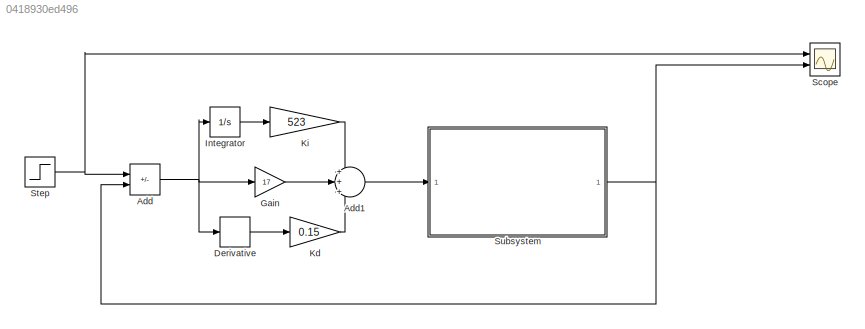
MODEL slx_0418930ed496
KIND model
CONFIG AbsTol = auto
CONFIG EnableMultiTasking = off
CONFIG FixedStep = auto
CONFIG MaxStep = auto
CONFIG MinStep = auto
CONFIG RelTol = 1e-3
CONFIG SampleTimeConstraint = Unconstrained
CONFIG Solver = VariableStepAuto
CONFIG SolverName = VariableStepAuto
CONFIG StartTime = 0.0
CONFIG StopTime = 100
BLOCK [Sum] Add
  IconShape = rectangular
  Inputs = +-
  Ports = [2, 1]
BLOCK [Sum] Add1
  Inputs = +++
  Ports = [3, 1]
BLOCK [Derivative] Derivative
BLOCK [Gain] Gain
  Gain = 17
BLOCK [Integrator] Integrator
  Ports = [1, 1]
BLOCK [Gain] Kd
  Gain = 0.15
BLOCK [Gain] Ki
  Gain = 523
BLOCK [Scope] Scope
  Floating = off
  NumInputPorts = 2
  Ports = [2]
  ScopeSpecificationString = Simulink.scopes.TimeScopeBlockCfg('CurrentConfiguration', extmgr.ConfigurationSet(extmgr.Configuration('Core','General UI',true),extmgr.Configuration('Core','Source UI',true),extmgr.Configuration('Sources','WiredSimulink',true),extmgr.Configuration('Visuals','Time Domain',true,'SerializedDisplays',{struct('MinYLimReal','-1762852336616.07446','MaxYLimReal','2324125107846.26953','YLabelReal','','Min...<+1801ch>
BLOCK [Step] Step
  SampleTime = 0
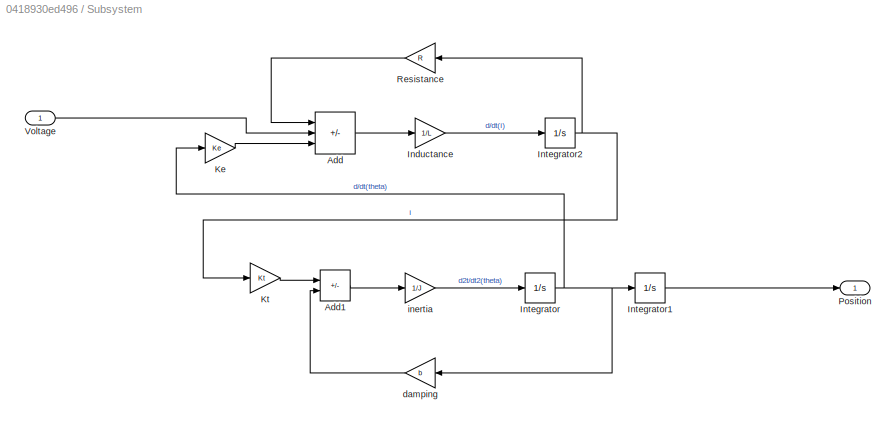
BLOCK [SubSystem] Subsystem
  Ports = [1, 1]
  RequestExecContextInheritance = off
BLOCK [Sum] Subsystem/Add
  IconShape = rectangular
  Inputs = -+-
  Ports = [3, 1]
BLOCK [Sum] Subsystem/Add1
  IconShape = rectangular
  Inputs = +-
  Ports = [2, 1]
BLOCK [Gain] Subsystem/Inductance
  Gain = 1/L
BLOCK [Integrator] Subsystem/Integrator
  Ports = [1, 1]
BLOCK [Integrator] Subsystem/Integrator1
  Ports = [1, 1]
BLOCK [Integrator] Subsystem/Integrator2
  Ports = [1, 1]
BLOCK [Gain] Subsystem/Ke
  Gain = Ke
BLOCK [Gain] Subsystem/Kt
  Gain = Kt
BLOCK [Outport] Subsystem/Position
BLOCK [Gain] Subsystem/Resistance
  Gain = R
BLOCK [Inport] Subsystem/Voltage
BLOCK [Gain] Subsystem/damping
  Gain = b
BLOCK [Gain] Subsystem/inertia
  Gain = 1/J
LINE Add1:1 -> Subsystem:1
NET Add:1 -> Derivative:1, Gain:1, Integrator:1
LINE Derivative:1 -> Kd:1
LINE Gain:1 -> Add1:2
LINE Integrator:1 -> Ki:1
LINE Kd:1 -> Add1:3
LINE Ki:1 -> Add1:1
NET Step:1 -> Add:1, Scope:1
LINE Subsystem/Add1:1 -> Subsystem/inertia:1
LINE Subsystem/Add:1 -> Subsystem/Inductance:1
LINE Subsystem/Inductance:1 -> Subsystem/Integrator2:1
LINE Subsystem/Integrator1:1 -> Subsystem/Position:1
NET Subsystem/Integrator2:1 -> Subsystem/Kt:1, Subsystem/Resistance:1
NET Subsystem/Integrator:1 -> Subsystem/Integrator1:1, Subsystem/Ke:1, Subsystem/damping:1
LINE Subsystem/Ke:1 -> Subsystem/Add:3
LINE Subsystem/Kt:1 -> Subsystem/Add1:1
LINE Subsystem/Resistance:1 -> Subsystem/Add:1
LINE Subsystem/Voltage:1 -> Subsystem/Add:2
LINE Subsystem/damping:1 -> Subsystem/Add1:2
LINE Subsystem/inertia:1 -> Subsystem/Integrator:1
NET Subsystem:1 -> Add:2, Scope:2
note: NET lines group one-source signal fan-out (src -> all destinations, sorted); 1:1 wires keep LINE
